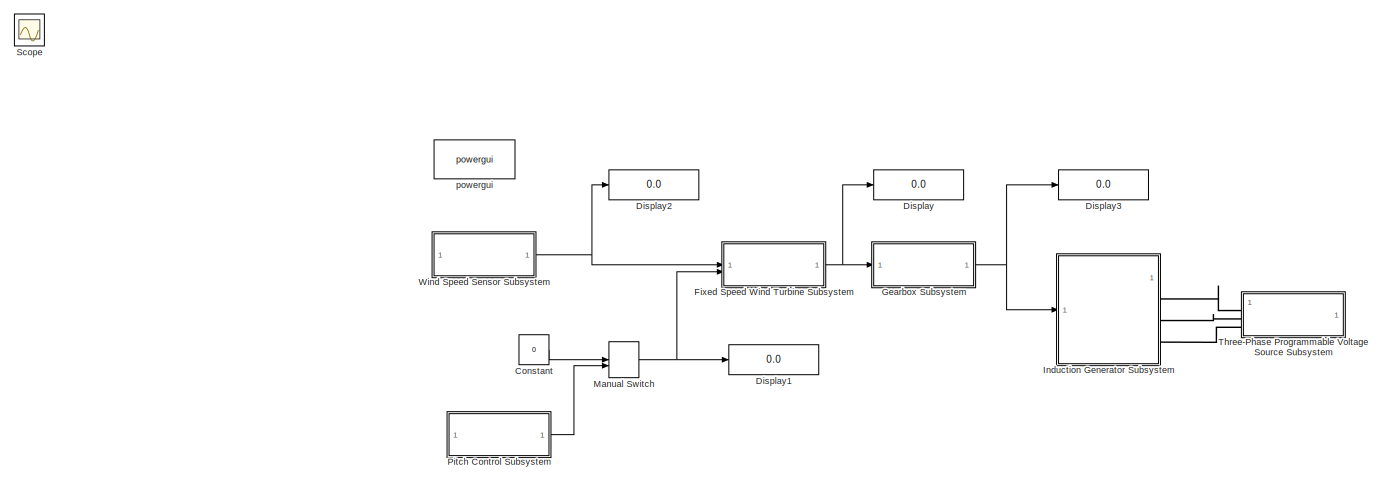
[diagram: root canvas - part 1/2, most of the canvas]
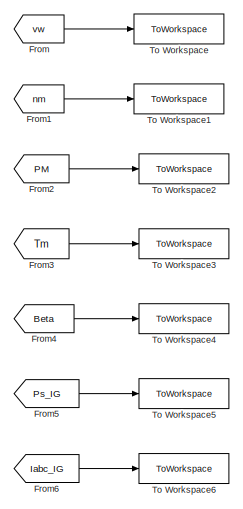
[diagram: root canvas - part 2/2, right side, full height]
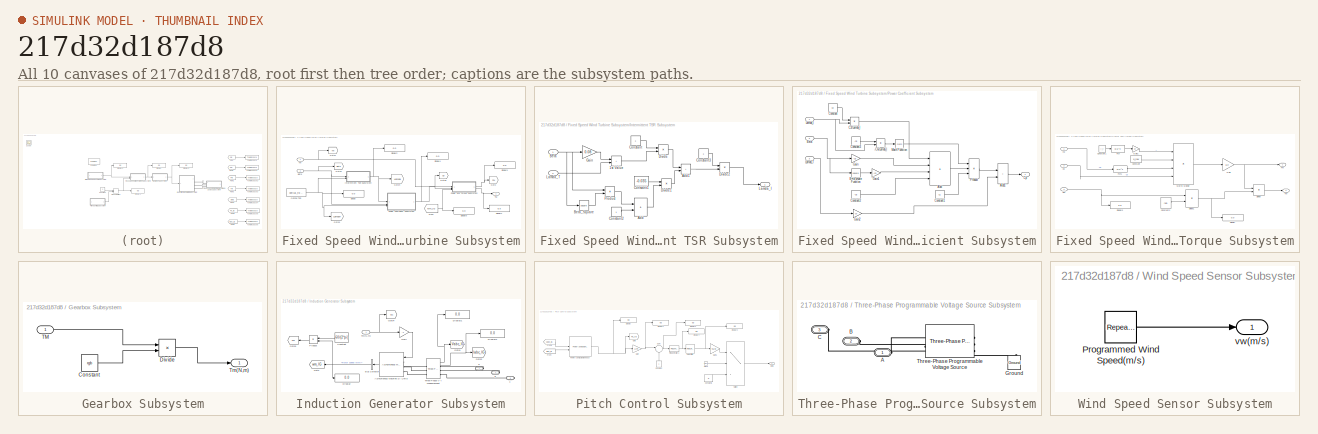
[diagram: thumbnail index - all 10 canvases of the model, root first then tree order]
MODEL slx_217d32d187d8
KIND model
CONFIG AbsTol = auto
CONFIG EnableMultiTasking = off
CONFIG FixedStep = 2e-6
CONFIG MaxStep = auto
CONFIG MinStep = auto
CONFIG RelTol = 1e-3
CONFIG SampleTimeConstraint = Unconstrained
CONFIG SolverName = ode4
CONFIG StartTime = 0.0
CONFIG StopTime = 2
BLOCK [Constant] Constant
  Value = 0
BLOCK [Display] Display
  Decimation = 1
BLOCK [Display] Display1
  Decimation = 1
BLOCK [Display] Display2
  Decimation = 1
BLOCK [Display] Display3
  Decimation = 1
  NameLocation = right
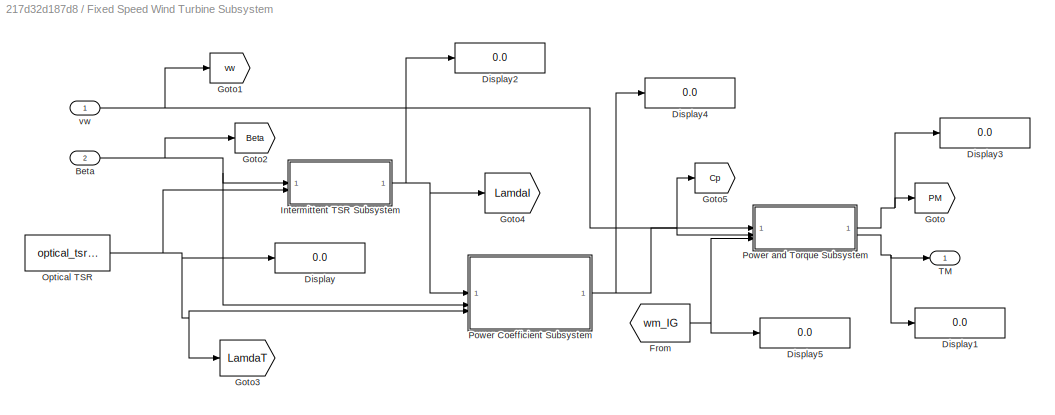
BLOCK [SubSystem] Fixed Speed Wind Turbine Subsystem
BLOCK [Inport] Fixed Speed Wind Turbine Subsystem/Beta
  Port = 2
BLOCK [Display] Fixed Speed Wind Turbine Subsystem/Display
  Decimation = 1
BLOCK [Display] Fixed Speed Wind Turbine Subsystem/Display1
  Decimation = 1
BLOCK [Display] Fixed Speed Wind Turbine Subsystem/Display2
  Decimation = 1
BLOCK [Display] Fixed Speed Wind Turbine Subsystem/Display3
  Decimation = 1
BLOCK [Display] Fixed Speed Wind Turbine Subsystem/Display4
  Decimation = 1
BLOCK [Display] Fixed Speed Wind Turbine Subsystem/Display5
  Decimation = 1
BLOCK [From] Fixed Speed Wind Turbine Subsystem/From
  GotoTag = wm_IG
  TagVisibility = global
BLOCK [Goto] Fixed Speed Wind Turbine Subsystem/Goto
  GotoTag = PM
  TagVisibility = global
BLOCK [Goto] Fixed Speed Wind Turbine Subsystem/Goto1
  GotoTag = vw
  TagVisibility = global
BLOCK [Goto] Fixed Speed Wind Turbine Subsystem/Goto2
  GotoTag = Beta
  TagVisibility = global
BLOCK [Goto] Fixed Speed Wind Turbine Subsystem/Goto3
  GotoTag = LamdaT
  TagVisibility = global
BLOCK [Goto] Fixed Speed Wind Turbine Subsystem/Goto4
  GotoTag = LamdaI
  TagVisibility = global
BLOCK [Goto] Fixed Speed Wind Turbine Subsystem/Goto5
  GotoTag = Cp
  TagVisibility = global
BLOCK [SubSystem] Fixed Speed Wind Turbine Subsystem/Intermittent TSR Subsystem
BLOCK [Sum] Fixed Speed Wind Turbine Subsystem/Intermittent TSR Subsystem/1st Value
  IconShape = rectangular
BLOCK [Sum] Fixed Speed Wind Turbine Subsystem/Intermittent TSR Subsystem/Add
  IconShape = rectangular
BLOCK [Sum] Fixed Speed Wind Turbine Subsystem/Intermittent TSR Subsystem/Add1
  IconShape = rectangular
BLOCK [Inport] Fixed Speed Wind Turbine Subsystem/Intermittent TSR Subsystem/Beta
BLOCK [Math] Fixed Speed Wind Turbine Subsystem/Intermittent TSR Subsystem/Beta_Square
  Operator = square
BLOCK [Constant] Fixed Speed Wind Turbine Subsystem/Intermittent TSR Subsystem/Constant
BLOCK [Constant] Fixed Speed Wind Turbine Subsystem/Intermittent TSR Subsystem/Constant1
  Value = -0.035
BLOCK [Constant] Fixed Speed Wind Turbine Subsystem/Intermittent TSR Subsystem/Constant2
BLOCK [Constant] Fixed Speed Wind Turbine Subsystem/Intermittent TSR Subsystem/Constant3
BLOCK [Product] Fixed Speed Wind Turbine Subsystem/Intermittent TSR Subsystem/Divide
  Inputs = */
BLOCK [Product] Fixed Speed Wind Turbine Subsystem/Intermittent TSR Subsystem/Divide1
  Inputs = */
BLOCK [Product] Fixed Speed Wind Turbine Subsystem/Intermittent TSR Subsystem/Divide2
  Inputs = */
BLOCK [Gain] Fixed Speed Wind Turbine Subsystem/Intermittent TSR Subsystem/Gain
  Gain = 0.08
BLOCK [Outport] Fixed Speed Wind Turbine Subsystem/Intermittent TSR Subsystem/Lamda_I
BLOCK [Inport] Fixed Speed Wind Turbine Subsystem/Intermittent TSR Subsystem/Lamda_T
  Port = 2
BLOCK [Product] Fixed Speed Wind Turbine Subsystem/Intermittent TSR Subsystem/Product
BLOCK [Constant] Fixed Speed Wind Turbine Subsystem/Optical TSR
  Value = optical_tsr_value
BLOCK [SubSystem] Fixed Speed Wind Turbine Subsystem/Power Coefficient Subsystem
BLOCK [Product] Fixed Speed Wind Turbine Subsystem/Power Coefficient Subsystem/-C6//Lamda_I
  Inputs = */
BLOCK [Sum] Fixed Speed Wind Turbine Subsystem/Power Coefficient Subsystem/Add
  IconShape = rectangular
  Inputs = ++++
BLOCK [Sum] Fixed Speed Wind Turbine Subsystem/Power Coefficient Subsystem/Add1
  IconShape = rectangular
BLOCK [Inport] Fixed Speed Wind Turbine Subsystem/Power Coefficient Subsystem/Beta
  Port = 2
BLOCK [Math] Fixed Speed Wind Turbine Subsystem/Power Coefficient Subsystem/Beta_square Function
  Operator = square
BLOCK [Product] Fixed Speed Wind Turbine Subsystem/Power Coefficient Subsystem/C2//Lamda_I
  Inputs = */
BLOCK [Constant] Fixed Speed Wind Turbine Subsystem/Power Coefficient Subsystem/Constant
  Value = C2
BLOCK [Constant] Fixed Speed Wind Turbine Subsystem/Power Coefficient Subsystem/Constant1
  Value = C1
BLOCK [Constant] Fixed Speed Wind Turbine Subsystem/Power Coefficient Subsystem/Constant2
  Value = -C5
BLOCK [Constant] Fixed Speed Wind Turbine Subsystem/Power Coefficient Subsystem/Constant3
  Value = -C6
BLOCK [Outport] Fixed Speed Wind Turbine Subsystem/Power Coefficient Subsystem/Cp
BLOCK [Gain] Fixed Speed Wind Turbine Subsystem/Power Coefficient Subsystem/Gain
  Gain = -C3
BLOCK [Gain] Fixed Speed Wind Turbine Subsystem/Power Coefficient Subsystem/Gain1
  Gain = -C4
BLOCK [Gain] Fixed Speed Wind Turbine Subsystem/Power Coefficient Subsystem/Gain2
  Gain = C7
BLOCK [Inport] Fixed Speed Wind Turbine Subsystem/Power Coefficient Subsystem/Lamda_I
BLOCK [Inport] Fixed Speed Wind Turbine Subsystem/Power Coefficient Subsystem/Lamda_T
  Port = 3
BLOCK [Math] Fixed Speed Wind Turbine Subsystem/Power Coefficient Subsystem/Math Function
BLOCK [Product] Fixed Speed Wind Turbine Subsystem/Power Coefficient Subsystem/Product
  Inputs = 3
BLOCK [SubSystem] Fixed Speed Wind Turbine Subsystem/Power and Torque Subsystem
BLOCK [Constant] Fixed Speed Wind Turbine Subsystem/Power and Torque Subsystem/Constant
  Value = p_row
BLOCK [Constant] Fixed Speed Wind Turbine Subsystem/Power and Torque Subsystem/Constant1
  Value = r_t
BLOCK [Constant] Fixed Speed Wind Turbine Subsystem/Power and Torque Subsystem/Constant2
  Value = rgb
BLOCK [Inport] Fixed Speed Wind Turbine Subsystem/Power and Torque Subsystem/Cp
  Port = 2
BLOCK [Display] Fixed Speed Wind Turbine Subsystem/Power and Torque Subsystem/Display
  Decimation = 1
BLOCK [Display] Fixed Speed Wind Turbine Subsystem/Power and Torque Subsystem/Display3
  Decimation = 1
BLOCK [Product] Fixed Speed Wind Turbine Subsystem/Power and Torque Subsystem/Divide
  Inputs = */
BLOCK [Product] Fixed Speed Wind Turbine Subsystem/Power and Torque Subsystem/Divide1
  Inputs = */
BLOCK [Fcn] Fixed Speed Wind Turbine Subsystem/Power and Torque Subsystem/Fcn
  Expr = u[1]^2
BLOCK [Fcn] Fixed Speed Wind Turbine Subsystem/Power and Torque Subsystem/Fcn1
  Expr = u[1]^3
BLOCK [Gain] Fixed Speed Wind Turbine Subsystem/Power and Torque Subsystem/Gain
  Gain = 1/2
BLOCK [Gain] Fixed Speed Wind Turbine Subsystem/Power and Torque Subsystem/Gain1
  Gain = pi
BLOCK [Product] Fixed Speed Wind Turbine Subsystem/Power and Torque Subsystem/Matrix Multiply
  Inputs = 4
BLOCK [Outport] Fixed Speed Wind Turbine Subsystem/Power and Torque Subsystem/PM
BLOCK [Outport] Fixed Speed Wind Turbine Subsystem/Power and Torque Subsystem/TM
  Port = 2
BLOCK [Inport] Fixed Speed Wind Turbine Subsystem/Power and Torque Subsystem/vw
BLOCK [Inport] Fixed Speed Wind Turbine Subsystem/Power and Torque Subsystem/wm
  Port = 3
BLOCK [Outport] Fixed Speed Wind Turbine Subsystem/TM
BLOCK [Inport] Fixed Speed Wind Turbine Subsystem/vw
BLOCK [From] From
  GotoTag = vw
  TagVisibility = global
BLOCK [From] From1
  GotoTag = nm
  TagVisibility = global
BLOCK [From] From2
  GotoTag = PM
  TagVisibility = global
BLOCK [From] From3
  GotoTag = Tm
  TagVisibility = global
BLOCK [From] From4
  GotoTag = Beta
  TagVisibility = global
BLOCK [From] From5
  GotoTag = Ps_IG
  TagVisibility = global
BLOCK [From] From6
  GotoTag = Iabc_IG
  TagVisibility = global
BLOCK [SubSystem] Gearbox Subsystem
BLOCK [Constant] Gearbox Subsystem/Constant
  Value = rgb
BLOCK [Product] Gearbox Subsystem/Divide
  Inputs = */
BLOCK [Inport] Gearbox Subsystem/TM
BLOCK [Outport] Gearbox Subsystem/Tm(N,m)
BLOCK [SubSystem] Induction Generator Subsystem
BLOCK [Reference] Induction Generator Subsystem/Asynchronous Machine SI Units  REF=spsAsynchronousMachineSIUnitsLib/Asynchronous Machine
SI Units
  LibrarySourceBlock = sps_lib/Electrical Machines/Asynchronous Machine\nSI Units
  NameLocation = top
  SourceBlock = spsAsynchronousMachineSIUnitsLib/Asynchronous Machine\nSI Units
  SourceType = Asynchronous Machine
BLOCK [BusSelector] Induction Generator Subsystem/Bus Selector
  NameLocation = top
  OutputSignals = Mechanical.Rotor speed (wm)
BLOCK [Constant] Induction Generator Subsystem/Constant
  NameLocation = top
  Value = 60/(2*pi)
BLOCK [Display] Induction Generator Subsystem/Display
  Decimation = 1
BLOCK [Display] Induction Generator Subsystem/Display1
  Decimation = 1
BLOCK [Display] Induction Generator Subsystem/Display2
  Decimation = 1
BLOCK [Gain] Induction Generator Subsystem/Gain
  Gain = -1
BLOCK [Goto] Induction Generator Subsystem/Goto
  GotoTag = wm_IG
  NameLocation = top
  TagVisibility = global
BLOCK [Goto] Induction Generator Subsystem/Goto1
  GotoTag = Vabc_IG
  TagVisibility = global
BLOCK [Goto] Induction Generator Subsystem/Goto2
  GotoTag = Iabc_IG
  TagVisibility = global
BLOCK [Goto] Induction Generator Subsystem/Goto3
  GotoTag = nm
  NameLocation = top
  TagVisibility = global
BLOCK [Goto] Induction Generator Subsystem/Goto4
  GotoTag = Tm
  TagVisibility = global
BLOCK [Product] Induction Generator Subsystem/Product
  NameLocation = top
BLOCK [Reference] Induction Generator Subsystem/Three-Phase V-I Measurement  REF=spsThreePhaseVIMeasurementLib/Three-Phase
V-I Measurement
  LibrarySourceBlock = sps_lib/Sensors and Measurements/Three-Phase\nV-I Measurement
  SourceBlock = spsThreePhaseVIMeasurementLib/Three-Phase\nV-I Measurement
  SourceType = Three-Phase VI Measurement
BLOCK [Inport] Induction Generator Subsystem/Tm(N,m)
BLOCK [PMIOPort] Induction Generator Subsystem/a
  NameLocation = top
  Side = Right
BLOCK [PMIOPort] Induction Generator Subsystem/b
  NameLocation = top
  Port = 2
  Side = Right
BLOCK [PMIOPort] Induction Generator Subsystem/c
  NameLocation = top
  Port = 3
  Side = Right
BLOCK [ManualSwitch] Manual Switch
  CurrentSetting = 0
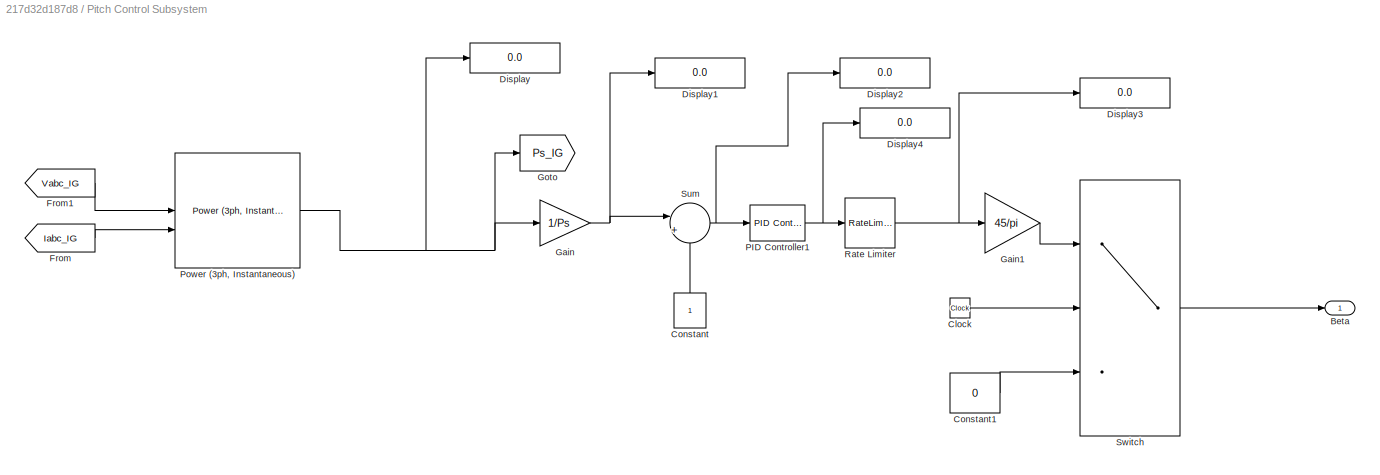
BLOCK [SubSystem] Pitch Control Subsystem
BLOCK [Outport] Pitch Control Subsystem/Beta
BLOCK [Clock] Pitch Control Subsystem/Clock
BLOCK [Constant] Pitch Control Subsystem/Constant
  NameLocation = right
BLOCK [Constant] Pitch Control Subsystem/Constant1
  Value = 0
BLOCK [Display] Pitch Control Subsystem/Display
  Decimation = 1
BLOCK [Display] Pitch Control Subsystem/Display1
  Decimation = 1
BLOCK [Display] Pitch Control Subsystem/Display2
  Decimation = 1
BLOCK [Display] Pitch Control Subsystem/Display3
  Decimation = 1
BLOCK [Display] Pitch Control Subsystem/Display4
  Decimation = 1
BLOCK [From] Pitch Control Subsystem/From
  GotoTag = Iabc_IG
  TagVisibility = global
BLOCK [From] Pitch Control Subsystem/From1
  GotoTag = Vabc_IG
  TagVisibility = global
BLOCK [Gain] Pitch Control Subsystem/Gain
  Gain = 1/Ps
BLOCK [Gain] Pitch Control Subsystem/Gain1
  Gain = 45/pi
BLOCK [Goto] Pitch Control Subsystem/Goto
  GotoTag = Ps_IG
  TagVisibility = global
BLOCK [Reference] Pitch Control Subsystem/PID Controller1  REF=slpidlib/PID Controller
  LibrarySourceBlock = simulink/Continuous/PID Controller
  SourceBlock = slpidlib/PID Controller
  SourceType = PID 1dof
BLOCK [Reference] Pitch Control Subsystem/Power (3ph, Instantaneous)  REF=spsPower3phInstantaneousLib/Power
(3ph, Instantaneous)
  LibrarySourceBlock = sps_lib/Sensors and Measurements/Power\n(3ph, Instantaneous)
  SourceBlock = spsPower3phInstantaneousLib/Power\n(3ph, Instantaneous)
  SourceType = Power (3ph, Instantaneous)
BLOCK [RateLimiter] Pitch Control Subsystem/Rate Limiter
  FallingSlewLimit = -10
  RisingSlewLimit = 10
  SampleTimeMode = inherited
BLOCK [Sum] Pitch Control Subsystem/Sum
  Inputs = |+-
BLOCK [Switch] Pitch Control Subsystem/Switch
  Criteria = u2 > Threshold
  InputSameDT = off
  SaturateOnIntegerOverflow = off
  Threshold = 2
BLOCK [Scope] Scope
  Floating = off
  IOType = viewer
  NumInputPorts = 1
  ScopeSpecificationString = Simulink.scopes.TimeScopeBlockCfg('CurrentConfiguration', extmgr.ConfigurationSet(extmgr.Configuration('Core','General UI',true,'FigureColor',[1 1 1]),extmgr.Configuration('Core','Source UI',true),extmgr.Configuration('Sources','WiredSimulink',true),extmgr.Configuration('Visuals','Time Domain',true,'SerializedDisplays',{struct('MinYLimReal','-1.49989','MaxYLimReal','13.49999','YLabelReal','Wind Sp...<+1589ch>
BLOCK [SubSystem] Three-Phase Programmable Voltage Source Subsystem
BLOCK [PMIOPort] Three-Phase Programmable Voltage Source Subsystem/A
  Side = Left
BLOCK [PMIOPort] Three-Phase Programmable Voltage Source Subsystem/B
  Port = 2
  Side = Left
BLOCK [PMIOPort] Three-Phase Programmable Voltage Source Subsystem/C
  Port = 3
  Side = Left
BLOCK [Reference] Three-Phase Programmable Voltage Source Subsystem/Ground  REF=spsGroundLib/Ground
  LibrarySourceBlock = sps_lib/Utilities/Ground
  NameLocation = right
  SourceBlock = spsGroundLib/Ground
  SourceType = Ground
BLOCK [Reference] Three-Phase Programmable Voltage Source Subsystem/Three-Phase Programmable Voltage Source  REF=spsThreePhaseProgrammableVoltageSourceLib/Three-Phase
Programmable
Voltage Source
  LibrarySourceBlock = sps_lib/Sources/Three-Phase\nProgrammable\nVoltage Source
  NameLocation = top
  SourceBlock = spsThreePhaseProgrammableVoltageSourceLib/Three-Phase\nProgrammable\nVoltage Source
  SourceType = Three-Phase Programmable Voltage Source
BLOCK [ToWorkspace] To Workspace
  FixptAsFi = on
  MaxDataPoints = inf
  SampleTime = -1
  VariableName = vw
BLOCK [ToWorkspace] To Workspace1
  FixptAsFi = on
  MaxDataPoints = inf
  SampleTime = -1
  VariableName = nm
BLOCK [ToWorkspace] To Workspace2
  FixptAsFi = on
  MaxDataPoints = inf
  SampleTime = -1
  VariableName = PM
BLOCK [ToWorkspace] To Workspace3
  FixptAsFi = on
  MaxDataPoints = inf
  SampleTime = -1
  VariableName = Tm
BLOCK [ToWorkspace] To Workspace4
  FixptAsFi = on
  MaxDataPoints = inf
  SampleTime = -1
  VariableName = Beta
BLOCK [ToWorkspace] To Workspace5
  FixptAsFi = on
  MaxDataPoints = inf
  SampleTime = -1
  VariableName = Ps_IG
BLOCK [ToWorkspace] To Workspace6
  FixptAsFi = on
  MaxDataPoints = inf
  SampleTime = -1
  VariableName = Iabc_IG
BLOCK [SubSystem] Wind Speed Sensor Subsystem
BLOCK [Reference] Wind Speed Sensor Subsystem/Programmed Wind Speed(m//s)  REF=simulink/Sources/Repeating
Sequence
  SourceBlock = simulink/Sources/Repeating\nSequence
  SourceType = Repeating table
BLOCK [Outport] Wind Speed Sensor Subsystem/vw(m//s)
BLOCK [Reference] powergui  REF=sps_lib/powergui
  LibrarySourceBlock = sps_lib/powergui
  Priority = 1
  SourceBlock = sps_lib/powergui
  SourceType = PSB option menu block
LINE Constant:1 -> Manual Switch:1
NET Fixed Speed Wind Turbine Subsystem/Beta:1 -> Fixed Speed Wind Turbine Subsystem/Goto2:1, Fixed Speed Wind Turbine Subsystem/Intermittent TSR Subsystem:1, Fixed Speed Wind Turbine Subsystem/Power Coefficient Subsystem:2
NET Fixed Speed Wind Turbine Subsystem/From:1 -> Fixed Speed Wind Turbine Subsystem/Display5:1, Fixed Speed Wind Turbine Subsystem/Power and Torque Subsystem:3
LINE Fixed Speed Wind Turbine Subsystem/Intermittent TSR Subsystem/1st Value:1 -> Fixed Speed Wind Turbine Subsystem/Intermittent TSR Subsystem/Divide:2
LINE Fixed Speed Wind Turbine Subsystem/Intermittent TSR Subsystem/Add1:1 -> Fixed Speed Wind Turbine Subsystem/Intermittent TSR Subsystem/Divide2:2
LINE Fixed Speed Wind Turbine Subsystem/Intermittent TSR Subsystem/Add:1 -> Fixed Speed Wind Turbine Subsystem/Intermittent TSR Subsystem/Divide1:2
NET Fixed Speed Wind Turbine Subsystem/Intermittent TSR Subsystem/Beta:1 -> Fixed Speed Wind Turbine Subsystem/Intermittent TSR Subsystem/Beta_Square:1, Fixed Speed Wind Turbine Subsystem/Intermittent TSR Subsystem/Gain:1, Fixed Speed Wind Turbine Subsystem/Intermittent TSR Subsystem/Product:1
LINE Fixed Speed Wind Turbine Subsystem/Intermittent TSR Subsystem/Beta_Square:1 -> Fixed Speed Wind Turbine Subsystem/Intermittent TSR Subsystem/Product:2
LINE Fixed Speed Wind Turbine Subsystem/Intermittent TSR Subsystem/Constant1:1 -> Fixed Speed Wind Turbine Subsystem/Intermittent TSR Subsystem/Divide1:1
LINE Fixed Speed Wind Turbine Subsystem/Intermittent TSR Subsystem/Constant2:1 -> Fixed Speed Wind Turbine Subsystem/Intermittent TSR Subsystem/Add:2
LINE Fixed Speed Wind Turbine Subsystem/Intermittent TSR Subsystem/Constant3:1 -> Fixed Speed Wind Turbine Subsystem/Intermittent TSR Subsystem/Divide2:1
LINE Fixed Speed Wind Turbine Subsystem/Intermittent TSR Subsystem/Constant:1 -> Fixed Speed Wind Turbine Subsystem/Intermittent TSR Subsystem/Divide:1
LINE Fixed Speed Wind Turbine Subsystem/Intermittent TSR Subsystem/Divide1:1 -> Fixed Speed Wind Turbine Subsystem/Intermittent TSR Subsystem/Add1:2
LINE Fixed Speed Wind Turbine Subsystem/Intermittent TSR Subsystem/Divide2:1 -> Fixed Speed Wind Turbine Subsystem/Intermittent TSR Subsystem/Lamda_I:1
LINE Fixed Speed Wind Turbine Subsystem/Intermittent TSR Subsystem/Divide:1 -> Fixed Speed Wind Turbine Subsystem/Intermittent TSR Subsystem/Add1:1
LINE Fixed Speed Wind Turbine Subsystem/Intermittent TSR Subsystem/Gain:1 -> Fixed Speed Wind Turbine Subsystem/Intermittent TSR Subsystem/1st Value:1
LINE Fixed Speed Wind Turbine Subsystem/Intermittent TSR Subsystem/Lamda_T:1 -> Fixed Speed Wind Turbine Subsystem/Intermittent TSR Subsystem/1st Value:2
LINE Fixed Speed Wind Turbine Subsystem/Intermittent TSR Subsystem/Product:1 -> Fixed Speed Wind Turbine Subsystem/Intermittent TSR Subsystem/Add:1
NET Fixed Speed Wind Turbine Subsystem/Intermittent TSR Subsystem:1 -> Fixed Speed Wind Turbine Subsystem/Display2:1, Fixed Speed Wind Turbine Subsystem/Goto4:1, Fixed Speed Wind Turbine Subsystem/Power Coefficient Subsystem:1
NET Fixed Speed Wind Turbine Subsystem/Optical TSR:1 -> Fixed Speed Wind Turbine Subsystem/Display:1, Fixed Speed Wind Turbine Subsystem/Goto3:1, Fixed Speed Wind Turbine Subsystem/Intermittent TSR Subsystem:2, Fixed Speed Wind Turbine Subsystem/Power Coefficient Subsystem:3
LINE Fixed Speed Wind Turbine Subsystem/Power Coefficient Subsystem/-C6//Lamda_I:1 -> Fixed Speed Wind Turbine Subsystem/Power Coefficient Subsystem/Math Function:1
LINE Fixed Speed Wind Turbine Subsystem/Power Coefficient Subsystem/Add1:1 -> Fixed Speed Wind Turbine Subsystem/Power Coefficient Subsystem/Cp:1
LINE Fixed Speed Wind Turbine Subsystem/Power Coefficient Subsystem/Add:1 -> Fixed Speed Wind Turbine Subsystem/Power Coefficient Subsystem/Product:2
NET Fixed Speed Wind Turbine Subsystem/Power Coefficient Subsystem/Beta:1 -> Fixed Speed Wind Turbine Subsystem/Power Coefficient Subsystem/Beta_square Function:1, Fixed Speed Wind Turbine Subsystem/Power Coefficient Subsystem/Gain:1
LINE Fixed Speed Wind Turbine Subsystem/Power Coefficient Subsystem/Beta_square Function:1 -> Fixed Speed Wind Turbine Subsystem/Power Coefficient Subsystem/Gain1:1
LINE Fixed Speed Wind Turbine Subsystem/Power Coefficient Subsystem/C2//Lamda_I:1 -> Fixed Speed Wind Turbine Subsystem/Power Coefficient Subsystem/Add:1
LINE Fixed Speed Wind Turbine Subsystem/Power Coefficient Subsystem/Constant1:1 -> Fixed Speed Wind Turbine Subsystem/Power Coefficient Subsystem/Product:3
LINE Fixed Speed Wind Turbine Subsystem/Power Coefficient Subsystem/Constant2:1 -> Fixed Speed Wind Turbine Subsystem/Power Coefficient Subsystem/Add:4
LINE Fixed Speed Wind Turbine Subsystem/Power Coefficient Subsystem/Constant3:1 -> Fixed Speed Wind Turbine Subsystem/Power Coefficient Subsystem/-C6//Lamda_I:1
LINE Fixed Speed Wind Turbine Subsystem/Power Coefficient Subsystem/Constant:1 -> Fixed Speed Wind Turbine Subsystem/Power Coefficient Subsystem/C2//Lamda_I:1
LINE Fixed Speed Wind Turbine Subsystem/Power Coefficient Subsystem/Gain1:1 -> Fixed Speed Wind Turbine Subsystem/Power Coefficient Subsystem/Add:3
LINE Fixed Speed Wind Turbine Subsystem/Power Coefficient Subsystem/Gain2:1 -> Fixed Speed Wind Turbine Subsystem/Power Coefficient Subsystem/Add1:2
LINE Fixed Speed Wind Turbine Subsystem/Power Coefficient Subsystem/Gain:1 -> Fixed Speed Wind Turbine Subsystem/Power Coefficient Subsystem/Add:2
NET Fixed Speed Wind Turbine Subsystem/Power Coefficient Subsystem/Lamda_I:1 -> Fixed Speed Wind Turbine Subsystem/Power Coefficient Subsystem/-C6//Lamda_I:2, Fixed Speed Wind Turbine Subsystem/Power Coefficient Subsystem/C2//Lamda_I:2
LINE Fixed Speed Wind Turbine Subsystem/Power Coefficient Subsystem/Lamda_T:1 -> Fixed Speed Wind Turbine Subsystem/Power Coefficient Subsystem/Gain2:1
LINE Fixed Speed Wind Turbine Subsystem/Power Coefficient Subsystem/Math Function:1 -> Fixed Speed Wind Turbine Subsystem/Power Coefficient Subsystem/Product:1
LINE Fixed Speed Wind Turbine Subsystem/Power Coefficient Subsystem/Product:1 -> Fixed Speed Wind Turbine Subsystem/Power Coefficient Subsystem/Add1:1
NET Fixed Speed Wind Turbine Subsystem/Power Coefficient Subsystem:1 -> Fixed Speed Wind Turbine Subsystem/Display4:1, Fixed Speed Wind Turbine Subsystem/Goto5:1, Fixed Speed Wind Turbine Subsystem/Power and Torque Subsystem:2
LINE Fixed Speed Wind Turbine Subsystem/Power and Torque Subsystem/Constant1:1 -> Fixed Speed Wind Turbine Subsystem/Power and Torque Subsystem/Fcn:1
LINE Fixed Speed Wind Turbine Subsystem/Power and Torque Subsystem/Constant2:1 -> Fixed Speed Wind Turbine Subsystem/Power and Torque Subsystem/Divide1:2
LINE Fixed Speed Wind Turbine Subsystem/Power and Torque Subsystem/Constant:1 -> Fixed Speed Wind Turbine Subsystem/Power and Torque Subsystem/Matrix Multiply:2
LINE Fixed Speed Wind Turbine Subsystem/Power and Torque Subsystem/Cp:1 -> Fixed Speed Wind Turbine Subsystem/Power and Torque Subsystem/Matrix Multiply:4
NET Fixed Speed Wind Turbine Subsystem/Power and Torque Subsystem/Divide1:1 -> Fixed Speed Wind Turbine Subsystem/Power and Torque Subsystem/Display:1, Fixed Speed Wind Turbine Subsystem/Power and Torque Subsystem/Divide:2
LINE Fixed Speed Wind Turbine Subsystem/Power and Torque Subsystem/Divide:1 -> Fixed Speed Wind Turbine Subsystem/Power and Torque Subsystem/TM:1
LINE Fixed Speed Wind Turbine Subsystem/Power and Torque Subsystem/Fcn1:1 -> Fixed Speed Wind Turbine Subsystem/Power and Torque Subsystem/Matrix Multiply:3
LINE Fixed Speed Wind Turbine Subsystem/Power and Torque Subsystem/Fcn:1 -> Fixed Speed Wind Turbine Subsystem/Power and Torque Subsystem/Gain1:1
LINE Fixed Speed Wind Turbine Subsystem/Power and Torque Subsystem/Gain1:1 -> Fixed Speed Wind Turbine Subsystem/Power and Torque Subsystem/Matrix Multiply:1
NET Fixed Speed Wind Turbine Subsystem/Power and Torque Subsystem/Gain:1 -> Fixed Speed Wind Turbine Subsystem/Power and Torque Subsystem/Divide:1, Fixed Speed Wind Turbine Subsystem/Power and Torque Subsystem/PM:1
LINE Fixed Speed Wind Turbine Subsystem/Power and Torque Subsystem/Matrix Multiply:1 -> Fixed Speed Wind Turbine Subsystem/Power and Torque Subsystem/Gain:1
LINE Fixed Speed Wind Turbine Subsystem/Power and Torque Subsystem/vw:1 -> Fixed Speed Wind Turbine Subsystem/Power and Torque Subsystem/Fcn1:1
NET Fixed Speed Wind Turbine Subsystem/Power and Torque Subsystem/wm:1 -> Fixed Speed Wind Turbine Subsystem/Power and Torque Subsystem/Display3:1, Fixed Speed Wind Turbine Subsystem/Power and Torque Subsystem/Divide1:1
NET Fixed Speed Wind Turbine Subsystem/Power and Torque Subsystem:1 -> Fixed Speed Wind Turbine Subsystem/Display3:1, Fixed Speed Wind Turbine Subsystem/Goto:1
NET Fixed Speed Wind Turbine Subsystem/Power and Torque Subsystem:2 -> Fixed Speed Wind Turbine Subsystem/Display1:1, Fixed Speed Wind Turbine Subsystem/TM:1
NET Fixed Speed Wind Turbine Subsystem/vw:1 -> Fixed Speed Wind Turbine Subsystem/Goto1:1, Fixed Speed Wind Turbine Subsystem/Power and Torque Subsystem:1
NET Fixed Speed Wind Turbine Subsystem:1 -> Display:1, Gearbox Subsystem:1
LINE From1:1 -> To Workspace1:1
LINE From2:1 -> To Workspace2:1
LINE From3:1 -> To Workspace3:1
LINE From4:1 -> To Workspace4:1
LINE From5:1 -> To Workspace5:1
LINE From6:1 -> To Workspace6:1
LINE From:1 -> To Workspace:1
LINE Gearbox Subsystem/Constant:1 -> Gearbox Subsystem/Divide:2
LINE Gearbox Subsystem/Divide:1 -> Gearbox Subsystem/Tm(N,m):1
LINE Gearbox Subsystem/TM:1 -> Gearbox Subsystem/Divide:1
NET Gearbox Subsystem:1 -> Display3:1, Induction Generator Subsystem:1
LINE Induction Generator Subsystem/Asynchronous Machine SI Units:1 -> Induction Generator Subsystem/Bus Selector:1
NET Induction Generator Subsystem/Bus Selector:1 -> Induction Generator Subsystem/Display:1, Induction Generator Subsystem/Goto:1, Induction Generator Subsystem/Product:2
LINE Induction Generator Subsystem/Constant:1 -> Induction Generator Subsystem/Product:1
LINE Induction Generator Subsystem/Gain:1 -> Induction Generator Subsystem/Asynchronous Machine SI Units:1
LINE Induction Generator Subsystem/Product:1 -> Induction Generator Subsystem/Goto3:1
NET Induction Generator Subsystem/Three-Phase V-I Measurement:1 -> Induction Generator Subsystem/Display1:1, Induction Generator Subsystem/Goto1:1
NET Induction Generator Subsystem/Three-Phase V-I Measurement:2 -> Induction Generator Subsystem/Display2:1, Induction Generator Subsystem/Goto2:1
NET Induction Generator Subsystem/Tm(N,m):1 -> Induction Generator Subsystem/Gain:1, Induction Generator Subsystem/Goto4:1
NET Manual Switch:1 -> Display1:1, Fixed Speed Wind Turbine Subsystem:2
LINE Pitch Control Subsystem/Clock:1 -> Pitch Control Subsystem/Switch:2
LINE Pitch Control Subsystem/Constant1:1 -> Pitch Control Subsystem/Switch:3
LINE Pitch Control Subsystem/Constant:1 -> Pitch Control Subsystem/Sum:2
LINE Pitch Control Subsystem/From1:1 -> Pitch Control Subsystem/Power (3ph, Instantaneous):1
LINE Pitch Control Subsystem/From:1 -> Pitch Control Subsystem/Power (3ph, Instantaneous):2
LINE Pitch Control Subsystem/Gain1:1 -> Pitch Control Subsystem/Switch:1
NET Pitch Control Subsystem/Gain:1 -> Pitch Control Subsystem/Display1:1, Pitch Control Subsystem/Sum:1
NET Pitch Control Subsystem/PID Controller1:1 -> Pitch Control Subsystem/Display4:1, Pitch Control Subsystem/Rate Limiter:1
NET Pitch Control Subsystem/Power (3ph, Instantaneous):1 -> Pitch Control Subsystem/Display:1, Pitch Control Subsystem/Gain:1, Pitch Control Subsystem/Goto:1
NET Pitch Control Subsystem/Rate Limiter:1 -> Pitch Control Subsystem/Display3:1, Pitch Control Subsystem/Gain1:1
NET Pitch Control Subsystem/Sum:1 -> Pitch Control Subsystem/Display2:1, Pitch Control Subsystem/PID Controller1:1
LINE Pitch Control Subsystem/Switch:1 -> Pitch Control Subsystem/Beta:1
LINE Pitch Control Subsystem:1 -> Manual Switch:2
LINE Wind Speed Sensor Subsystem/Programmed Wind Speed(m//s):1 -> Wind Speed Sensor Subsystem/vw(m//s):1
NET Wind Speed Sensor Subsystem:1 -> Display2:1, Fixed Speed Wind Turbine Subsystem:1
PLINE Induction Generator Subsystem/Asynchronous Machine SI Units:LConn1 -- Induction Generator Subsystem/Three-Phase V-I Measurement:LConn1
PLINE Induction Generator Subsystem/Asynchronous Machine SI Units:LConn2 -- Induction Generator Subsystem/Three-Phase V-I Measurement:LConn2
PLINE Induction Generator Subsystem/Asynchronous Machine SI Units:LConn3 -- Induction Generator Subsystem/Three-Phase V-I Measurement:LConn3
PLINE Induction Generator Subsystem/Three-Phase V-I Measurement:RConn1 -- Induction Generator Subsystem/a:RConn1
PLINE Induction Generator Subsystem/Three-Phase V-I Measurement:RConn2 -- Induction Generator Subsystem/b:RConn1
PLINE Induction Generator Subsystem/Three-Phase V-I Measurement:RConn3 -- Induction Generator Subsystem/c:RConn1
PLINE Induction Generator Subsystem:RConn1 -- Three-Phase Programmable Voltage Source Subsystem:LConn1
PLINE Induction Generator Subsystem:RConn2 -- Three-Phase Programmable Voltage Source Subsystem:LConn2
PLINE Induction Generator Subsystem:RConn3 -- Three-Phase Programmable Voltage Source Subsystem:LConn3
PLINE Three-Phase Programmable Voltage Source Subsystem/A:RConn1 -- Three-Phase Programmable Voltage Source Subsystem/Three-Phase Programmable Voltage Source:RConn1
PLINE Three-Phase Programmable Voltage Source Subsystem/B:RConn1 -- Three-Phase Programmable Voltage Source Subsystem/Three-Phase Programmable Voltage Source:RConn2
PLINE Three-Phase Programmable Voltage Source Subsystem/C:RConn1 -- Three-Phase Programmable Voltage Source Subsystem/Three-Phase Programmable Voltage Source:RConn3
PLINE Three-Phase Programmable Voltage Source Subsystem/Ground:LConn1 -- Three-Phase Programmable Voltage Source Subsystem/Three-Phase Programmable Voltage Source:LConn1
note: NET lines group one-source signal fan-out (src -> all destinations, sorted); 1:1 wires keep LINE
